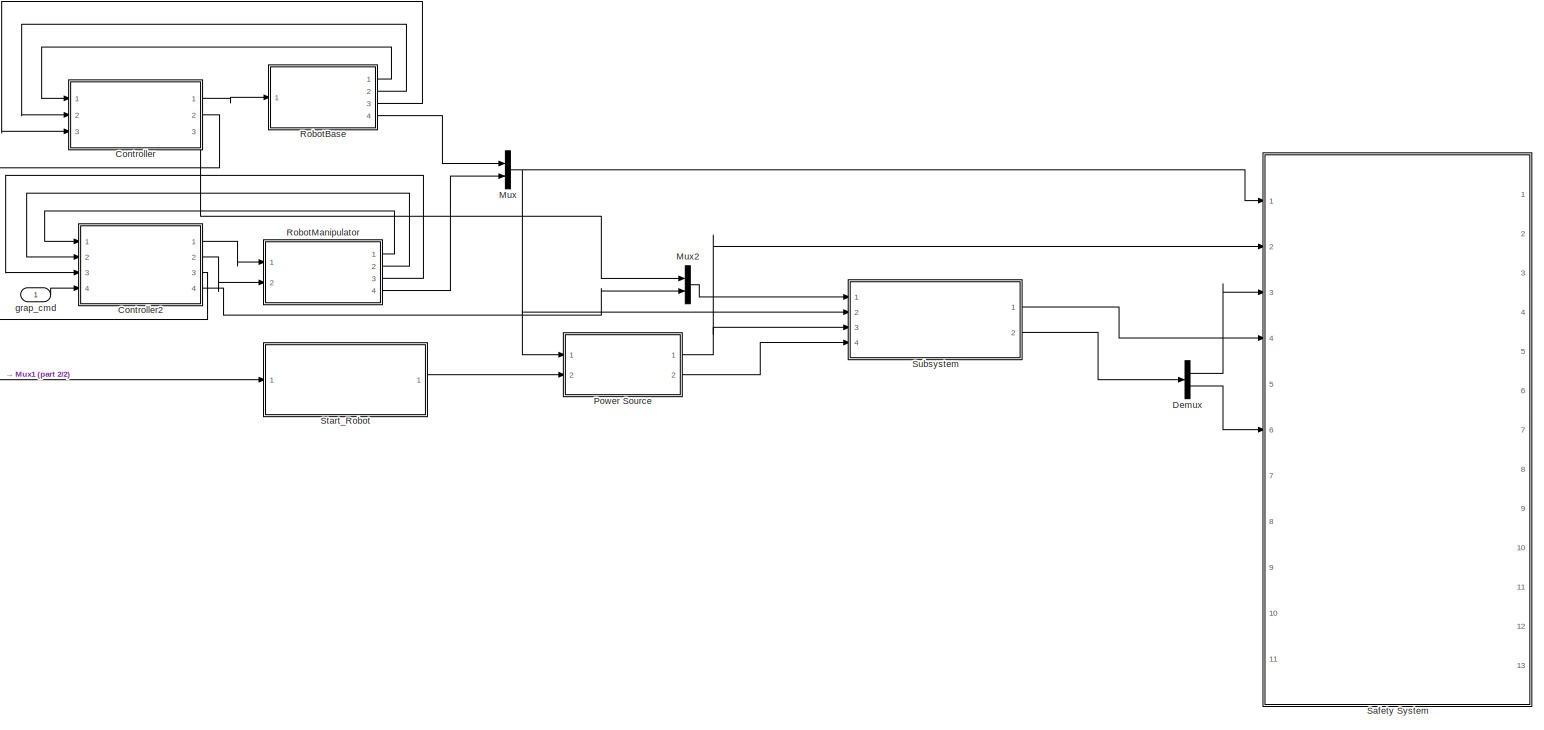
[diagram: root canvas - part 1/2, most of the canvas]
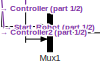
[diagram: root canvas - part 2/2, middle left region]
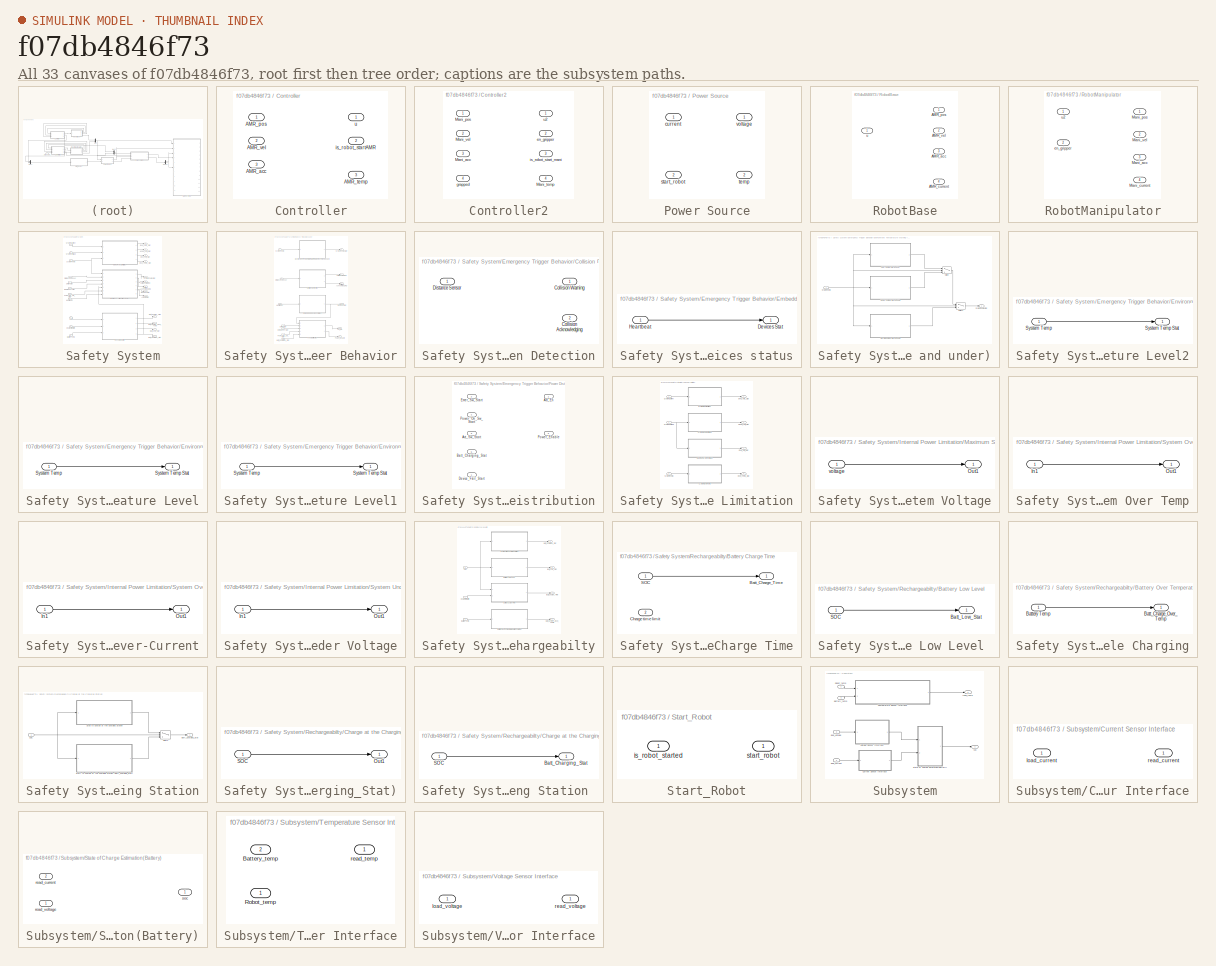
[diagram: thumbnail index - all 33 canvases of the model, root first then tree order]
MODEL slx_f07db4846f73
KIND model
CONFIG AbsTol = auto
CONFIG EnableMultiTasking = off
CONFIG FixedStep = auto
CONFIG MaxStep = auto
CONFIG MinStep = auto
CONFIG RelTol = 1e-3
CONFIG SampleTimeConstraint = Unconstrained
CONFIG SolverName = VariableStepAuto
CONFIG StartTime = 0.0
CONFIG StopTime = 10.0
BLOCK [SubSystem] Controller
  Ports = [3, 3]
  RequestExecContextInheritance = off
BLOCK [Inport] Controller/AMR_acc
  Port = 3
BLOCK [Inport] Controller/AMR_pos
BLOCK [Outport] Controller/AMR_temp
  Port = 3
BLOCK [Inport] Controller/AMR_vel
  Port = 2
BLOCK [Outport] Controller/is_robot_startAMR
  Port = 2
BLOCK [Outport] Controller/u
BLOCK [SubSystem] Controller2
  Ports = [4, 4]
  RequestExecContextInheritance = off
BLOCK [Inport] Controller2/Mani_acc
  Port = 3
BLOCK [Inport] Controller2/Mani_pos
BLOCK [Outport] Controller2/Mani_temp
  Port = 4
BLOCK [Inport] Controller2/Mani_vel
  Port = 2
BLOCK [Outport] Controller2/en_gripper
  Port = 2
BLOCK [Inport] Controller2/grapped
  Port = 4
BLOCK [Outport] Controller2/is_robot_start_mani
  Port = 3
BLOCK [Outport] Controller2/u2
BLOCK [Demux] Demux
  Outputs = 2
  Ports = [1, 2]
BLOCK [Mux] Mux
  DisplayOption = bar
  Inputs = 2
  Ports = [2, 1]
BLOCK [Mux] Mux1
  DisplayOption = bar
  Inputs = 2
  Ports = [2, 1]
BLOCK [Mux] Mux2
  DisplayOption = bar
  Inputs = 2
  Ports = [2, 1]
BLOCK [SubSystem] Power Source
  Ports = [2, 2]
  RequestExecContextInheritance = off
BLOCK [Inport] Power Source/current
BLOCK [Inport] Power Source/start_robot
  Port = 2
BLOCK [Outport] Power Source/temp
  Port = 2
BLOCK [Outport] Power Source/voltage
BLOCK [SubSystem] RobotBase
  Ports = [1, 4]
  RequestExecContextInheritance = off
BLOCK [Outport] RobotBase/AMR_acc
  Port = 3
BLOCK [Outport] RobotBase/AMR_current
  Port = 4
BLOCK [Outport] RobotBase/AMR_pos
BLOCK [Outport] RobotBase/AMR_vel
  Port = 2
BLOCK [Inport] RobotBase/u
BLOCK [SubSystem] RobotManipulator
  Ports = [2, 4]
  RequestExecContextInheritance = off
BLOCK [Outport] RobotManipulator/Mani_acc
  Port = 3
BLOCK [Outport] RobotManipulator/Mani_current
  Port = 4
BLOCK [Outport] RobotManipulator/Mani_pos
BLOCK [Outport] RobotManipulator/Mani_vel
  Port = 2
BLOCK [Inport] RobotManipulator/en_gripper
  Port = 2
BLOCK [Inport] RobotManipulator/u2
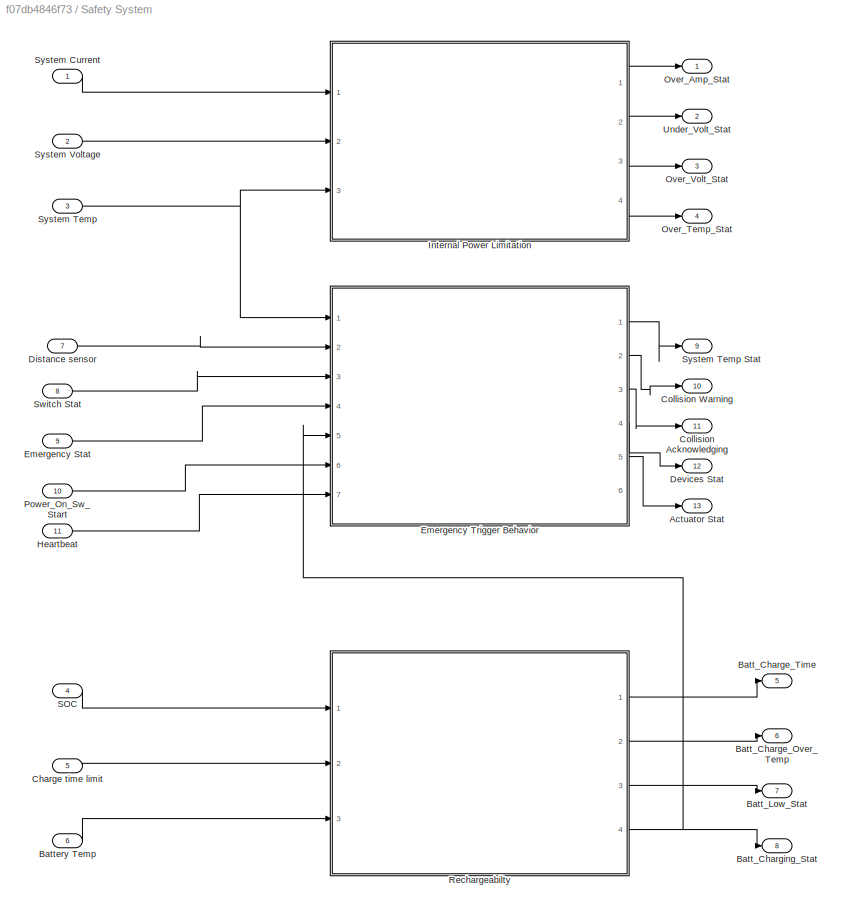
BLOCK [SubSystem] Safety System
  Ports = [11, 13]
  RequestExecContextInheritance = off
BLOCK [Outport] Safety System/Actuator Stat
  Port = 13
BLOCK [Outport] Safety System/Batt_Charge_Over_Temp
  Port = 6
BLOCK [Outport] Safety System/Batt_Charge_Time
  Port = 5
BLOCK [Outport] Safety System/Batt_Charging_Stat
  Port = 8
BLOCK [Outport] Safety System/Batt_Low_Stat
  Port = 7
BLOCK [Inport] Safety System/Battery Temp
  Port = 6
BLOCK [Inport] Safety System/Charge time limit
  Port = 5
BLOCK [Outport] Safety System/Collision Acknowledging
  Port = 11
BLOCK [Outport] Safety System/Collision Warning
  Port = 10
BLOCK [Outport] Safety System/Devices Stat
  Port = 12
BLOCK [Inport] Safety System/Distance sensor
  Port = 7
BLOCK [Inport] Safety System/Emergency Stat
  Port = 9
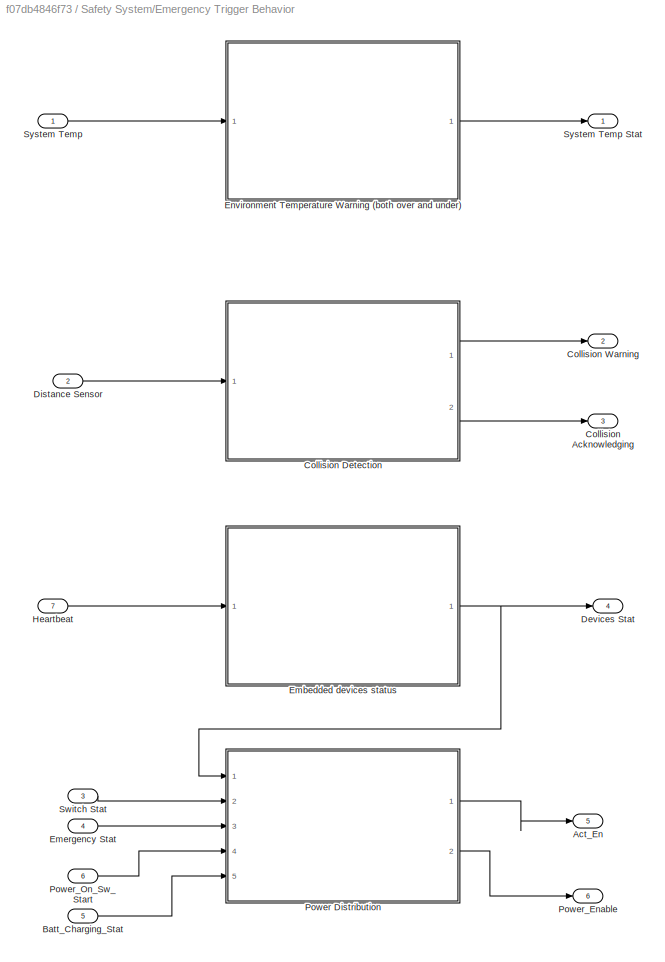
BLOCK [SubSystem] Safety System/Emergency Trigger Behavior
  Ports = [7, 6]
  RequestExecContextInheritance = off
BLOCK [Outport] Safety System/Emergency Trigger Behavior/Act_En
  Port = 5
BLOCK [Inport] Safety System/Emergency Trigger Behavior/Batt_Charging_Stat
  Port = 5
BLOCK [Outport] Safety System/Emergency Trigger Behavior/Collision Acknowledging
  Port = 3
BLOCK [SubSystem] Safety System/Emergency Trigger Behavior/Collision Detection
  Ports = [1, 2]
  RequestExecContextInheritance = off
BLOCK [Outport] Safety System/Emergency Trigger Behavior/Collision Detection/Collision Acknowledging
  Port = 2
BLOCK [Outport] Safety System/Emergency Trigger Behavior/Collision Detection/Collision Warning
BLOCK [Inport] Safety System/Emergency Trigger Behavior/Collision Detection/Distance Sensor
BLOCK [Outport] Safety System/Emergency Trigger Behavior/Collision Warning
  Port = 2
BLOCK [Outport] Safety System/Emergency Trigger Behavior/Devices Stat
  Port = 4
BLOCK [Inport] Safety System/Emergency Trigger Behavior/Distance Sensor
  Port = 2
BLOCK [SubSystem] Safety System/Emergency Trigger Behavior/Embedded devices status
  Ports = [1, 1]
  RequestExecContextInheritance = off
BLOCK [Outport] Safety System/Emergency Trigger Behavior/Embedded devices status/Devices Stat
BLOCK [Inport] Safety System/Emergency Trigger Behavior/Embedded devices status/Heartbeat
BLOCK [Inport] Safety System/Emergency Trigger Behavior/Emergency Stat
  Port = 4
BLOCK [SubSystem] Safety System/Emergency Trigger Behavior/Environment Temperature Warning (both over and under)
  Ports = [1, 1]
  RequestExecContextInheritance = off
BLOCK [SubSystem] Safety System/Emergency Trigger Behavior/Environment Temperature Warning (both over and under)/Normal Temperature Level2
  Ports = [1, 1]
  RequestExecContextInheritance = off
BLOCK [Inport] Safety System/Emergency Trigger Behavior/Environment Temperature Warning (both over and under)/Normal Temperature Level2/System Temp
BLOCK [Outport] Safety System/Emergency Trigger Behavior/Environment Temperature Warning (both over and under)/Normal Temperature Level2/System Temp Stat
BLOCK [SubSystem] Safety System/Emergency Trigger Behavior/Environment Temperature Warning (both over and under)/Over Temperature Level
  Ports = [1, 1]
  RequestExecContextInheritance = off
BLOCK [Inport] Safety System/Emergency Trigger Behavior/Environment Temperature Warning (both over and under)/Over Temperature Level/System Temp
BLOCK [Outport] Safety System/Emergency Trigger Behavior/Environment Temperature Warning (both over and under)/Over Temperature Level/System Temp Stat
BLOCK [Switch] Safety System/Emergency Trigger Behavior/Environment Temperature Warning (both over and under)/Switch
  Criteria = u2 > Threshold
  InputSameDT = off
  SaturateOnIntegerOverflow = off
BLOCK [Switch] Safety System/Emergency Trigger Behavior/Environment Temperature Warning (both over and under)/Switch1
  Criteria = u2 > Threshold
  InputSameDT = off
  SaturateOnIntegerOverflow = off
BLOCK [Inport] Safety System/Emergency Trigger Behavior/Environment Temperature Warning (both over and under)/System Temp
BLOCK [Outport] Safety System/Emergency Trigger Behavior/Environment Temperature Warning (both over and under)/System Temp Stat
BLOCK [SubSystem] Safety System/Emergency Trigger Behavior/Environment Temperature Warning (both over and under)/Under Temperature Level1
  Ports = [1, 1]
  RequestExecContextInheritance = off
BLOCK [Inport] Safety System/Emergency Trigger Behavior/Environment Temperature Warning (both over and under)/Under Temperature Level1/System Temp
BLOCK [Outport] Safety System/Emergency Trigger Behavior/Environment Temperature Warning (both over and under)/Under Temperature Level1/System Temp Stat
BLOCK [Inport] Safety System/Emergency Trigger Behavior/Heartbeat
  Port = 7
BLOCK [SubSystem] Safety System/Emergency Trigger Behavior/Power Distribution
  Ports = [5, 2]
  RequestExecContextInheritance = off
BLOCK [Outport] Safety System/Emergency Trigger Behavior/Power Distribution/Act_En
BLOCK [Inport] Safety System/Emergency Trigger Behavior/Power Distribution/Act_Sw_Start
  Port = 3
BLOCK [Inport] Safety System/Emergency Trigger Behavior/Power Distribution/Batt_Charging_Stat
  Port = 5
BLOCK [Inport] Safety System/Emergency Trigger Behavior/Power Distribution/Device_Fail_Start
BLOCK [Inport] Safety System/Emergency Trigger Behavior/Power Distribution/Emer_Sw_Start
  Port = 2
BLOCK [Outport] Safety System/Emergency Trigger Behavior/Power Distribution/Power_Enable
  Port = 2
BLOCK [Inport] Safety System/Emergency Trigger Behavior/Power Distribution/Power_On_Sw_Start
  Port = 4
BLOCK [Outport] Safety System/Emergency Trigger Behavior/Power_Enable
  Port = 6
BLOCK [Inport] Safety System/Emergency Trigger Behavior/Power_On_Sw_Start
  Port = 6
BLOCK [Inport] Safety System/Emergency Trigger Behavior/Switch Stat
  Port = 3
BLOCK [Inport] Safety System/Emergency Trigger Behavior/System Temp
BLOCK [Outport] Safety System/Emergency Trigger Behavior/System Temp Stat
BLOCK [Inport] Safety System/Heartbeat
  Port = 11
BLOCK [SubSystem] Safety System/Internal Power Limitation
  Ports = [3, 4]
  RequestExecContextInheritance = off
BLOCK [SubSystem] Safety System/Internal Power Limitation/Maximum System Voltage
  Ports = [1, 1]
  RequestExecContextInheritance = off
BLOCK [Outport] Safety System/Internal Power Limitation/Maximum System Voltage/Out1
BLOCK [Inport] Safety System/Internal Power Limitation/Maximum System Voltage/voltage
BLOCK [Outport] Safety System/Internal Power Limitation/Over_Amp_Stat
BLOCK [Outport] Safety System/Internal Power Limitation/Over_Temp_Stat
  Port = 4
BLOCK [Outport] Safety System/Internal Power Limitation/Over_Volt_Stat
  Port = 3
BLOCK [Inport] Safety System/Internal Power Limitation/System Current
BLOCK [SubSystem] Safety System/Internal Power Limitation/System Over Temp
  Ports = [1, 1]
  RequestExecContextInheritance = off
BLOCK [Inport] Safety System/Internal Power Limitation/System Over Temp/In1
BLOCK [Outport] Safety System/Internal Power Limitation/System Over Temp/Out1
BLOCK [SubSystem] Safety System/Internal Power Limitation/System Over-Current
  Ports = [1, 1]
  RequestExecContextInheritance = off
BLOCK [Inport] Safety System/Internal Power Limitation/System Over-Current/In1
BLOCK [Outport] Safety System/Internal Power Limitation/System Over-Current/Out1
BLOCK [Inport] Safety System/Internal Power Limitation/System Temp
  Port = 3
BLOCK [SubSystem] Safety System/Internal Power Limitation/System Under Voltage
  Ports = [1, 1]
  RequestExecContextInheritance = off
BLOCK [Inport] Safety System/Internal Power Limitation/System Under Voltage/In1
BLOCK [Outport] Safety System/Internal Power Limitation/System Under Voltage/Out1
BLOCK [Inport] Safety System/Internal Power Limitation/System Voltage
  Port = 2
BLOCK [Outport] Safety System/Internal Power Limitation/Under_Volt_Stat
  Port = 2
BLOCK [Outport] Safety System/Over_Amp_Stat
BLOCK [Outport] Safety System/Over_Temp_Stat
  Port = 4
BLOCK [Outport] Safety System/Over_Volt_Stat
  Port = 3
BLOCK [Inport] Safety System/Power_On_Sw_Start
  Port = 10
BLOCK [SubSystem] Safety System/Rechargeabilty
  Ports = [3, 4]
  RequestExecContextInheritance = off
BLOCK [Outport] Safety System/Rechargeabilty/Batt_Charge_Over_Temp
  Port = 2
BLOCK [Outport] Safety System/Rechargeabilty/Batt_Charge_Time
BLOCK [Outport] Safety System/Rechargeabilty/Batt_Charging_Stat
  Port = 4
BLOCK [Outport] Safety System/Rechargeabilty/Batt_Low_Stat
  Port = 3
BLOCK [SubSystem] Safety System/Rechargeabilty/Battery Charge Time
  Ports = [2, 1]
  RequestExecContextInheritance = off
BLOCK [Outport] Safety System/Rechargeabilty/Battery Charge Time/Batt_Charge_Time
BLOCK [Inport] Safety System/Rechargeabilty/Battery Charge Time/Charge time limit
  Port = 2
BLOCK [Inport] Safety System/Rechargeabilty/Battery Charge Time/SOC
BLOCK [SubSystem] Safety System/Rechargeabilty/Battery Low Level 
  Ports = [1, 1]
  RequestExecContextInheritance = off
BLOCK [Outport] Safety System/Rechargeabilty/Battery Low Level /Batt_Low_Stat
BLOCK [Inport] Safety System/Rechargeabilty/Battery Low Level /SOC
BLOCK [SubSystem] Safety System/Rechargeabilty/Battery Over Temperature while Charging
  Ports = [1, 1]
  RequestExecContextInheritance = off
BLOCK [Outport] Safety System/Rechargeabilty/Battery Over Temperature while Charging/Batt_Charge_Over_Temp
BLOCK [Inport] Safety System/Rechargeabilty/Battery Over Temperature while Charging/Battery Temp
BLOCK [Inport] Safety System/Rechargeabilty/Battery Temp
  Port = 3
BLOCK [SubSystem] Safety System/Rechargeabilty/Charge at the Charging Station
  Ports = [1, 1]
  RequestExecContextInheritance = off
BLOCK [Outport] Safety System/Rechargeabilty/Charge at the Charging Station/Batt_Charging_Stat
BLOCK [Inport] Safety System/Rechargeabilty/Charge at the Charging Station/SOC
BLOCK [SubSystem] Safety System/Rechargeabilty/Charge at the Charging Station/Start to Charge at the Charging Station (Batt_Charging_Stat)
  Ports = [1, 1]
  RequestExecContextInheritance = off
BLOCK [Outport] Safety System/Rechargeabilty/Charge at the Charging Station/Start to Charge at the Charging Station (Batt_Charging_Stat)/Out1
BLOCK [Inport] Safety System/Rechargeabilty/Charge at the Charging Station/Start to Charge at the Charging Station (Batt_Charging_Stat)/SOC
BLOCK [SubSystem] Safety System/Rechargeabilty/Charge at the Charging Station/Stop to Charge at the Charging Station 
  Ports = [1, 1]
  RequestExecContextInheritance = off
BLOCK [Outport] Safety System/Rechargeabilty/Charge at the Charging Station/Stop to Charge at the Charging Station /Batt_Charging_Stat
BLOCK [Inport] Safety System/Rechargeabilty/Charge at the Charging Station/Stop to Charge at the Charging Station /SOC
BLOCK [Switch] Safety System/Rechargeabilty/Charge at the Charging Station/Switch
  Criteria = u2 > Threshold
  InputSameDT = off
  SaturateOnIntegerOverflow = off
BLOCK [Inport] Safety System/Rechargeabilty/Charge time limit
  Port = 2
BLOCK [Inport] Safety System/Rechargeabilty/SOC
BLOCK [Inport] Safety System/SOC
  Port = 4
BLOCK [Inport] Safety System/Switch Stat
  Port = 8
BLOCK [Inport] Safety System/System Current
BLOCK [Inport] Safety System/System Temp
  Port = 3
BLOCK [Outport] Safety System/System Temp Stat
  Port = 9
BLOCK [Inport] Safety System/System Voltage
  Port = 2
BLOCK [Outport] Safety System/Under_Volt_Stat
  Port = 2
BLOCK [SubSystem] Start_Robot
  Ports = [1, 1]
  RequestExecContextInheritance = off
BLOCK [Inport] Start_Robot/is_robot_started
BLOCK [Outport] Start_Robot/start_robot
BLOCK [SubSystem] Subsystem
  Ports = [4, 2]
  RequestExecContextInheritance = off
BLOCK [Inport] Subsystem/Battery_temp
  Port = 4
BLOCK [SubSystem] Subsystem/Current Sensor Interface
  Ports = [1, 1]
  RequestExecContextInheritance = off
BLOCK [Inport] Subsystem/Current Sensor Interface/load_current
BLOCK [Outport] Subsystem/Current Sensor Interface/read_current
BLOCK [Inport] Subsystem/Robot_temp
BLOCK [SubSystem] Subsystem/State of Charge Estimation(Battery)
  Ports = [2, 1]
  RequestExecContextInheritance = off
BLOCK [Inport] Subsystem/State of Charge Estimation(Battery)/read_current
  Port = 2
BLOCK [Inport] Subsystem/State of Charge Estimation(Battery)/read_voltage
BLOCK [Outport] Subsystem/State of Charge Estimation(Battery)/soc
BLOCK [SubSystem] Subsystem/Temperature Sensor Interface
  Ports = [2, 1]
  RequestExecContextInheritance = off
BLOCK [Inport] Subsystem/Temperature Sensor Interface/Battery_temp
  Port = 2
BLOCK [Inport] Subsystem/Temperature Sensor Interface/Robot_temp
BLOCK [Outport] Subsystem/Temperature Sensor Interface/read_temp
BLOCK [SubSystem] Subsystem/Voltage Sensor Interface
  Ports = [1, 1]
  RequestExecContextInheritance = off
BLOCK [Inport] Subsystem/Voltage Sensor Interface/load_voltage
BLOCK [Outport] Subsystem/Voltage Sensor Interface/read_voltage
BLOCK [Inport] Subsystem/load_current
  Port = 2
BLOCK [Inport] Subsystem/load_voltage
  Port = 3
BLOCK [Outport] Subsystem/read_temp
  Port = 2
BLOCK [Outport] Subsystem/soc
BLOCK [Inport] grap_cmd
LINE Controller2:1 -> RobotManipulator:1
LINE Controller2:2 -> RobotManipulator:2
LINE Controller2:3 -> Mux1:1
LINE Controller2:4 -> Mux2:2
LINE Controller:1 -> RobotBase:1
LINE Controller:2 -> Mux1:2
LINE Controller:3 -> Mux2:1
LINE Demux:1 -> Safety System:3
LINE Demux:2 -> Safety System:6
LINE Mux1:1 -> Start_Robot:1
LINE Mux2:1 -> Subsystem:1
NET Mux:1 -> Power Source:1, Safety System:1, Subsystem:2
NET Power Source:1 -> Safety System:2, Subsystem:3
LINE Power Source:2 -> Subsystem:4
LINE RobotBase:1 -> Controller:1
LINE RobotBase:2 -> Controller:2
LINE RobotBase:3 -> Controller:3
LINE RobotBase:4 -> Mux:1
LINE RobotManipulator:1 -> Controller2:1
LINE RobotManipulator:2 -> Controller2:2
LINE RobotManipulator:3 -> Controller2:3
LINE RobotManipulator:4 -> Mux:2
LINE Safety System/Battery Temp:1 -> Safety System/Rechargeabilty:3
LINE Safety System/Charge time limit:1 -> Safety System/Rechargeabilty:2
LINE Safety System/Distance sensor:1 -> Safety System/Emergency Trigger Behavior:2
LINE Safety System/Emergency Stat:1 -> Safety System/Emergency Trigger Behavior:4
LINE Safety System/Emergency Trigger Behavior/Batt_Charging_Stat:1 -> Safety System/Emergency Trigger Behavior/Power Distribution:5
LINE Safety System/Emergency Trigger Behavior/Collision Detection:1 -> Safety System/Emergency Trigger Behavior/Collision Warning:1
LINE Safety System/Emergency Trigger Behavior/Collision Detection:2 -> Safety System/Emergency Trigger Behavior/Collision Acknowledging:1
LINE Safety System/Emergency Trigger Behavior/Distance Sensor:1 -> Safety System/Emergency Trigger Behavior/Collision Detection:1
LINE Safety System/Emergency Trigger Behavior/Embedded devices status/Heartbeat:1 -> Safety System/Emergency Trigger Behavior/Embedded devices status/Devices Stat:1
NET Safety System/Emergency Trigger Behavior/Embedded devices status:1 -> Safety System/Emergency Trigger Behavior/Devices Stat:1, Safety System/Emergency Trigger Behavior/Power Distribution:1
LINE Safety System/Emergency Trigger Behavior/Emergency Stat:1 -> Safety System/Emergency Trigger Behavior/Power Distribution:3
LINE Safety System/Emergency Trigger Behavior/Environment Temperature Warning (both over and under)/Normal Temperature Level2/System Temp:1 -> Safety System/Emergency Trigger Behavior/Environment Temperature Warning (both over and under)/Normal Temperature Level2/System Temp Stat:1
LINE Safety System/Emergency Trigger Behavior/Environment Temperature Warning (both over and under)/Normal Temperature Level2:1 -> Safety System/Emergency Trigger Behavior/Environment Temperature Warning (both over and under)/Switch1:3
LINE Safety System/Emergency Trigger Behavior/Environment Temperature Warning (both over and under)/Over Temperature Level/System Temp:1 -> Safety System/Emergency Trigger Behavior/Environment Temperature Warning (both over and under)/Over Temperature Level/System Temp Stat:1
LINE Safety System/Emergency Trigger Behavior/Environment Temperature Warning (both over and under)/Over Temperature Level:1 -> Safety System/Emergency Trigger Behavior/Environment Temperature Warning (both over and under)/Switch:1
LINE Safety System/Emergency Trigger Behavior/Environment Temperature Warning (both over and under)/Switch1:1 -> Safety System/Emergency Trigger Behavior/Environment Temperature Warning (both over and under)/System Temp Stat:1
LINE Safety System/Emergency Trigger Behavior/Environment Temperature Warning (both over and under)/Switch:1 -> Safety System/Emergency Trigger Behavior/Environment Temperature Warning (both over and under)/Switch1:1
NET Safety System/Emergency Trigger Behavior/Environment Temperature Warning (both over and under)/System Temp:1 -> Safety System/Emergency Trigger Behavior/Environment Temperature Warning (both over and under)/Normal Temperature Level2:1, Safety System/Emergency Trigger Behavior/Environment Temperature Warning (both over and under)/Over Temperature Level:1, Safety System/Emergency Trigger Behavior/Environment Temperature Warning (both over and under)/Switch1:2, Safety System/Emergency Trigger Behavior/Environment Temperature Warning (both over and under)/Switch:2, Safety System/Emergency Trigger Behavior/Environment Temperature Warning (both over and under)/Under Temperature Level1:1
LINE Safety System/Emergency Trigger Behavior/Environment Temperature Warning (both over and under)/Under Temperature Level1/System Temp:1 -> Safety System/Emergency Trigger Behavior/Environment Temperature Warning (both over and under)/Under Temperature Level1/System Temp Stat:1
LINE Safety System/Emergency Trigger Behavior/Environment Temperature Warning (both over and under)/Under Temperature Level1:1 -> Safety System/Emergency Trigger Behavior/Environment Temperature Warning (both over and under)/Switch:3
LINE Safety System/Emergency Trigger Behavior/Environment Temperature Warning (both over and under):1 -> Safety System/Emergency Trigger Behavior/System Temp Stat:1
LINE Safety System/Emergency Trigger Behavior/Heartbeat:1 -> Safety System/Emergency Trigger Behavior/Embedded devices status:1
LINE Safety System/Emergency Trigger Behavior/Power Distribution:1 -> Safety System/Emergency Trigger Behavior/Act_En:1
LINE Safety System/Emergency Trigger Behavior/Power Distribution:2 -> Safety System/Emergency Trigger Behavior/Power_Enable:1
LINE Safety System/Emergency Trigger Behavior/Power_On_Sw_Start:1 -> Safety System/Emergency Trigger Behavior/Power Distribution:4
LINE Safety System/Emergency Trigger Behavior/Switch Stat:1 -> Safety System/Emergency Trigger Behavior/Power Distribution:2
LINE Safety System/Emergency Trigger Behavior/System Temp:1 -> Safety System/Emergency Trigger Behavior/Environment Temperature Warning (both over and under):1
LINE Safety System/Emergency Trigger Behavior:1 -> Safety System/System Temp Stat:1
LINE Safety System/Emergency Trigger Behavior:2 -> Safety System/Collision Warning:1
LINE Safety System/Emergency Trigger Behavior:3 -> Safety System/Collision Acknowledging:1
LINE Safety System/Emergency Trigger Behavior:4 -> Safety System/Devices Stat:1
LINE Safety System/Emergency Trigger Behavior:5 -> Safety System/Actuator Stat:1
LINE Safety System/Heartbeat:1 -> Safety System/Emergency Trigger Behavior:7
LINE Safety System/Internal Power Limitation/Maximum System Voltage/voltage:1 -> Safety System/Internal Power Limitation/Maximum System Voltage/Out1:1
LINE Safety System/Internal Power Limitation/Maximum System Voltage:1 -> Safety System/Internal Power Limitation/Over_Volt_Stat:1
LINE Safety System/Internal Power Limitation/System Current:1 -> Safety System/Internal Power Limitation/System Over-Current:1
LINE Safety System/Internal Power Limitation/System Over Temp/In1:1 -> Safety System/Internal Power Limitation/System Over Temp/Out1:1
LINE Safety System/Internal Power Limitation/System Over Temp:1 -> Safety System/Internal Power Limitation/Over_Temp_Stat:1
LINE Safety System/Internal Power Limitation/System Over-Current/In1:1 -> Safety System/Internal Power Limitation/System Over-Current/Out1:1
LINE Safety System/Internal Power Limitation/System Over-Current:1 -> Safety System/Internal Power Limitation/Over_Amp_Stat:1
LINE Safety System/Internal Power Limitation/System Temp:1 -> Safety System/Internal Power Limitation/System Over Temp:1
LINE Safety System/Internal Power Limitation/System Under Voltage/In1:1 -> Safety System/Internal Power Limitation/System Under Voltage/Out1:1
LINE Safety System/Internal Power Limitation/System Under Voltage:1 -> Safety System/Internal Power Limitation/Under_Volt_Stat:1
NET Safety System/Internal Power Limitation/System Voltage:1 -> Safety System/Internal Power Limitation/Maximum System Voltage:1, Safety System/Internal Power Limitation/System Under Voltage:1
LINE Safety System/Internal Power Limitation:1 -> Safety System/Over_Amp_Stat:1
LINE Safety System/Internal Power Limitation:2 -> Safety System/Under_Volt_Stat:1
LINE Safety System/Internal Power Limitation:3 -> Safety System/Over_Volt_Stat:1
LINE Safety System/Internal Power Limitation:4 -> Safety System/Over_Temp_Stat:1
LINE Safety System/Power_On_Sw_Start:1 -> Safety System/Emergency Trigger Behavior:6
LINE Safety System/Rechargeabilty/Battery Charge Time/SOC:1 -> Safety System/Rechargeabilty/Battery Charge Time/Batt_Charge_Time:1
LINE Safety System/Rechargeabilty/Battery Charge Time:1 -> Safety System/Rechargeabilty/Batt_Charge_Time:1
LINE Safety System/Rechargeabilty/Battery Low Level /SOC:1 -> Safety System/Rechargeabilty/Battery Low Level /Batt_Low_Stat:1
LINE Safety System/Rechargeabilty/Battery Low Level :1 -> Safety System/Rechargeabilty/Batt_Low_Stat:1
LINE Safety System/Rechargeabilty/Battery Over Temperature while Charging/Battery Temp:1 -> Safety System/Rechargeabilty/Battery Over Temperature while Charging/Batt_Charge_Over_Temp:1
LINE Safety System/Rechargeabilty/Battery Over Temperature while Charging:1 -> Safety System/Rechargeabilty/Batt_Charge_Over_Temp:1
LINE Safety System/Rechargeabilty/Battery Temp:1 -> Safety System/Rechargeabilty/Battery Over Temperature while Charging:1
NET Safety System/Rechargeabilty/Charge at the Charging Station/SOC:1 -> Safety System/Rechargeabilty/Charge at the Charging Station/Start to Charge at the Charging Station (Batt_Charging_Stat):1, Safety System/Rechargeabilty/Charge at the Charging Station/Stop to Charge at the Charging Station :1, Safety System/Rechargeabilty/Charge at the Charging Station/Switch:2
LINE Safety System/Rechargeabilty/Charge at the Charging Station/Start to Charge at the Charging Station (Batt_Charging_Stat)/SOC:1 -> Safety System/Rechargeabilty/Charge at the Charging Station/Start to Charge at the Charging Station (Batt_Charging_Stat)/Out1:1
LINE Safety System/Rechargeabilty/Charge at the Charging Station/Start to Charge at the Charging Station (Batt_Charging_Stat):1 -> Safety System/Rechargeabilty/Charge at the Charging Station/Switch:3
LINE Safety System/Rechargeabilty/Charge at the Charging Station/Stop to Charge at the Charging Station /SOC:1 -> Safety System/Rechargeabilty/Charge at the Charging Station/Stop to Charge at the Charging Station /Batt_Charging_Stat:1
LINE Safety System/Rechargeabilty/Charge at the Charging Station/Stop to Charge at the Charging Station :1 -> Safety System/Rechargeabilty/Charge at the Charging Station/Switch:1
LINE Safety System/Rechargeabilty/Charge at the Charging Station/Switch:1 -> Safety System/Rechargeabilty/Charge at the Charging Station/Batt_Charging_Stat:1
LINE Safety System/Rechargeabilty/Charge at the Charging Station:1 -> Safety System/Rechargeabilty/Batt_Charging_Stat:1
LINE Safety System/Rechargeabilty/Charge time limit:1 -> Safety System/Rechargeabilty/Battery Charge Time:2
NET Safety System/Rechargeabilty/SOC:1 -> Safety System/Rechargeabilty/Battery Charge Time:1, Safety System/Rechargeabilty/Battery Low Level :1, Safety System/Rechargeabilty/Charge at the Charging Station:1
LINE Safety System/Rechargeabilty:1 -> Safety System/Batt_Charge_Time:1
LINE Safety System/Rechargeabilty:2 -> Safety System/Batt_Charge_Over_Temp:1
LINE Safety System/Rechargeabilty:3 -> Safety System/Batt_Low_Stat:1
NET Safety System/Rechargeabilty:4 -> Safety System/Batt_Charging_Stat:1, Safety System/Emergency Trigger Behavior:5
LINE Safety System/SOC:1 -> Safety System/Rechargeabilty:1
LINE Safety System/Switch Stat:1 -> Safety System/Emergency Trigger Behavior:3
LINE Safety System/System Current:1 -> Safety System/Internal Power Limitation:1
NET Safety System/System Temp:1 -> Safety System/Emergency Trigger Behavior:1, Safety System/Internal Power Limitation:3
LINE Safety System/System Voltage:1 -> Safety System/Internal Power Limitation:2
LINE Start_Robot:1 -> Power Source:2
LINE Subsystem/Battery_temp:1 -> Subsystem/Temperature Sensor Interface:2
LINE Subsystem/Current Sensor Interface:1 -> Subsystem/State of Charge Estimation(Battery):2
LINE Subsystem/Robot_temp:1 -> Subsystem/Temperature Sensor Interface:1
LINE Subsystem/State of Charge Estimation(Battery):1 -> Subsystem/soc:1
LINE Subsystem/Temperature Sensor Interface:1 -> Subsystem/read_temp:1
LINE Subsystem/Voltage Sensor Interface:1 -> Subsystem/State of Charge Estimation(Battery):1
LINE Subsystem/load_current:1 -> Subsystem/Current Sensor Interface:1
LINE Subsystem/load_voltage:1 -> Subsystem/Voltage Sensor Interface:1
LINE Subsystem:1 -> Safety System:4
LINE Subsystem:2 -> Demux:1
LINE grap_cmd:1 -> Controller2:4
note: NET lines group one-source signal fan-out (src -> all destinations, sorted); 1:1 wires keep LINE
